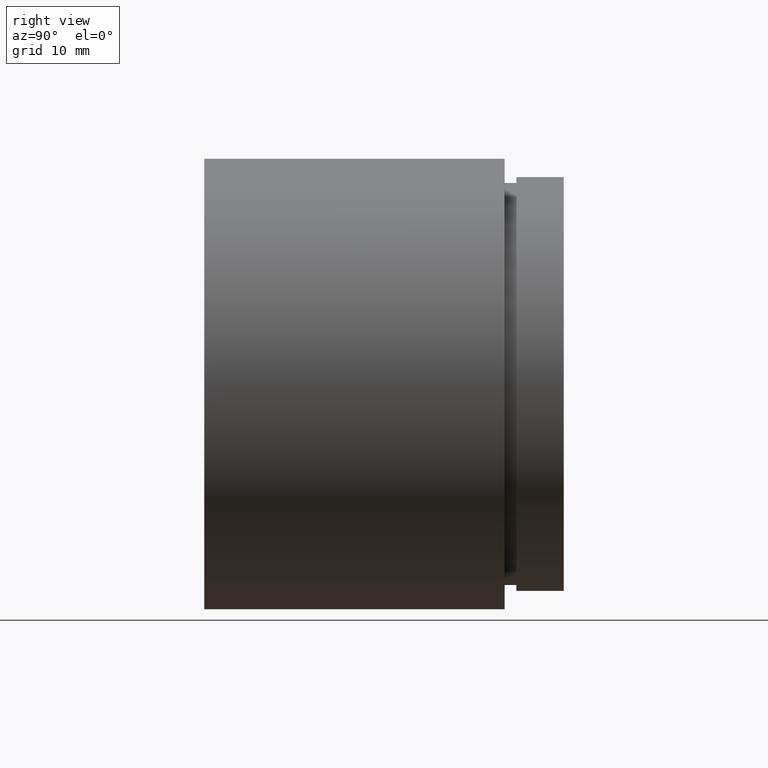
[diagram: clean part render]
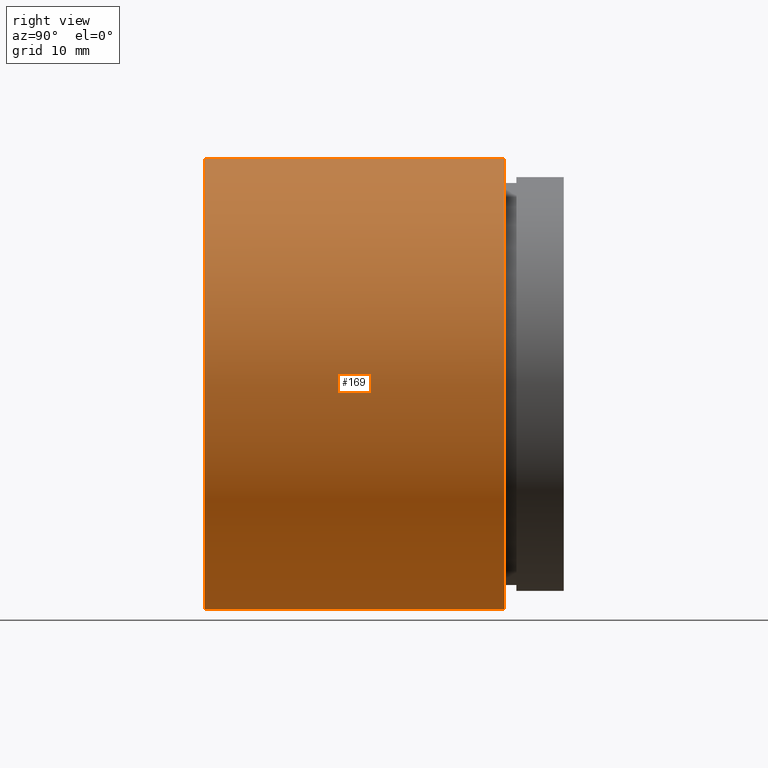
[diagram: same view with one face highlighted and labeled with its STEP entity id]
A machine part, right view. The second image highlights one B-rep face of the part: STEP entity #169.
In plain terms, the highlighted cylindrical surface (partial cylindrical patch) has radius 19.05 mm, axis along (-0, 1, -0).
Its self-contained STEP definition (entity closure, byte-faithful):
#7 = ORIENTED_EDGE ( 'NONE', *, *, #586, .F. ) ;
#17 = VERTEX_POINT ( 'NONE', #206 ) ;
#39 = CIRCLE ( 'NONE', #163, 19.05000000000002200 ) ;
#65 = CIRCLE ( 'NONE', #399, 19.05000000000002200 ) ;
#69 = CARTESIAN_POINT ( 'NONE',  ( 0.0000000000000000000, 25.39999999999997700, 0.0000000000000000000 ) ) ;
#70 = EDGE_LOOP ( 'NONE', ( #552, #482, #211, #7 ) ) ;
#88 = CARTESIAN_POINT ( 'NONE',  ( 0.0000000000000000000, -2.775557561562891400E-014, 0.0000000000000000000 ) ) ;
#94 = DIRECTION ( 'NONE',  ( 0.0000000000000000000, 0.0000000000000000000, 1.000000000000000000 ) ) ;
#108 = EDGE_CURVE ( 'NONE', #491, #344, #65, .T. ) ;
#117 = FACE_OUTER_BOUND ( 'NONE', #70, .T. ) ;
#130 = DIRECTION ( 'NONE',  ( -0.0000000000000000000, 1.000000000000000000, -0.0000000000000000000 ) ) ;
#132 = CARTESIAN_POINT ( 'NONE',  ( 0.0000000000000000000, 161.3761669434274500, 0.0000000000000000000 ) ) ;
#151 = LINE ( 'NONE', #224, #286 ) ;
#163 = AXIS2_PLACEMENT_3D ( 'NONE', #88, #346, #94 ) ;
#169 = ADVANCED_FACE ( 'NONE', ( #117 ), #485, .T. ) ;
#188 = VECTOR ( 'NONE', #574, 1000.000000000000000 ) ;
#206 = CARTESIAN_POINT ( 'NONE',  ( 2.332952152375710400E-015, -2.775557561562891400E-014, -19.05000000000002200 ) ) ;
#210 = CARTESIAN_POINT ( 'NONE',  ( 0.0000000000000000000, 25.39999999999997700, 19.05000000000002200 ) ) ;
#211 = ORIENTED_EDGE ( 'NONE', *, *, #108, .F. ) ;
#224 = CARTESIAN_POINT ( 'NONE',  ( 0.0000000000000000000, 161.3761669434274500, 19.05000000000002200 ) ) ;
#238 = EDGE_CURVE ( 'NONE', #434, #17, #39, .T. ) ;
#246 = LINE ( 'NONE', #517, #188 ) ;
#286 = VECTOR ( 'NONE', #130, 1000.000000000000000 ) ;
#296 = EDGE_CURVE ( 'NONE', #17, #344, #246, .T. ) ;
#344 = VERTEX_POINT ( 'NONE', #579 ) ;
#346 = DIRECTION ( 'NONE',  ( -0.0000000000000000000, 1.000000000000000000, -0.0000000000000000000 ) ) ;
#397 = CARTESIAN_POINT ( 'NONE',  ( 0.0000000000000000000, -2.775557561562891400E-014, 19.05000000000002200 ) ) ;
#399 = AXIS2_PLACEMENT_3D ( 'NONE', #69, #415, #455 ) ;
#415 = DIRECTION ( 'NONE',  ( -0.0000000000000000000, 1.000000000000000000, -0.0000000000000000000 ) ) ;
#434 = VERTEX_POINT ( 'NONE', #397 ) ;
#435 = AXIS2_PLACEMENT_3D ( 'NONE', #132, #568, #615 ) ;
#455 = DIRECTION ( 'NONE',  ( 0.0000000000000000000, 0.0000000000000000000, 1.000000000000000000 ) ) ;
#482 = ORIENTED_EDGE ( 'NONE', *, *, #296, .T. ) ;
#485 = CYLINDRICAL_SURFACE ( 'NONE', #435, 19.05000000000002200 ) ;
#491 = VERTEX_POINT ( 'NONE', #210 ) ;
#517 = CARTESIAN_POINT ( 'NONE',  ( 2.332952152375710400E-015, 161.3761669434274500, -19.05000000000002200 ) ) ;
#552 = ORIENTED_EDGE ( 'NONE', *, *, #238, .T. ) ;
#568 = DIRECTION ( 'NONE',  ( -0.0000000000000000000, 1.000000000000000000, -0.0000000000000000000 ) ) ;
#574 = DIRECTION ( 'NONE',  ( -0.0000000000000000000, 1.000000000000000000, -0.0000000000000000000 ) ) ;
#579 = CARTESIAN_POINT ( 'NONE',  ( 2.332952152375710400E-015, 25.39999999999997700, -19.05000000000002200 ) ) ;
#586 = EDGE_CURVE ( 'NONE', #434, #491, #151, .T. ) ;
#615 = DIRECTION ( 'NONE',  ( 0.0000000000000000000, 0.0000000000000000000, 1.000000000000000000 ) ) ;